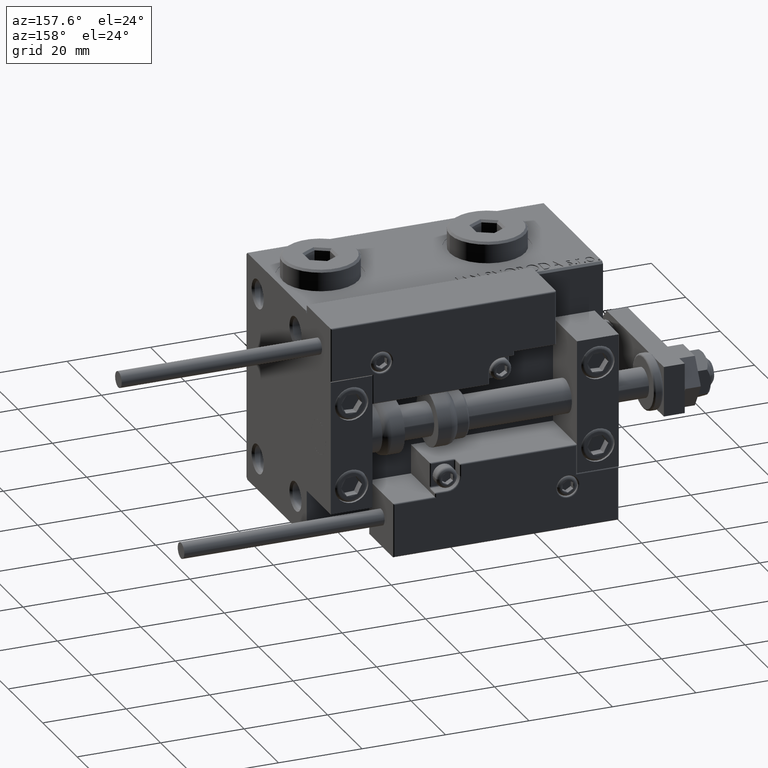
[diagram: clean part render]
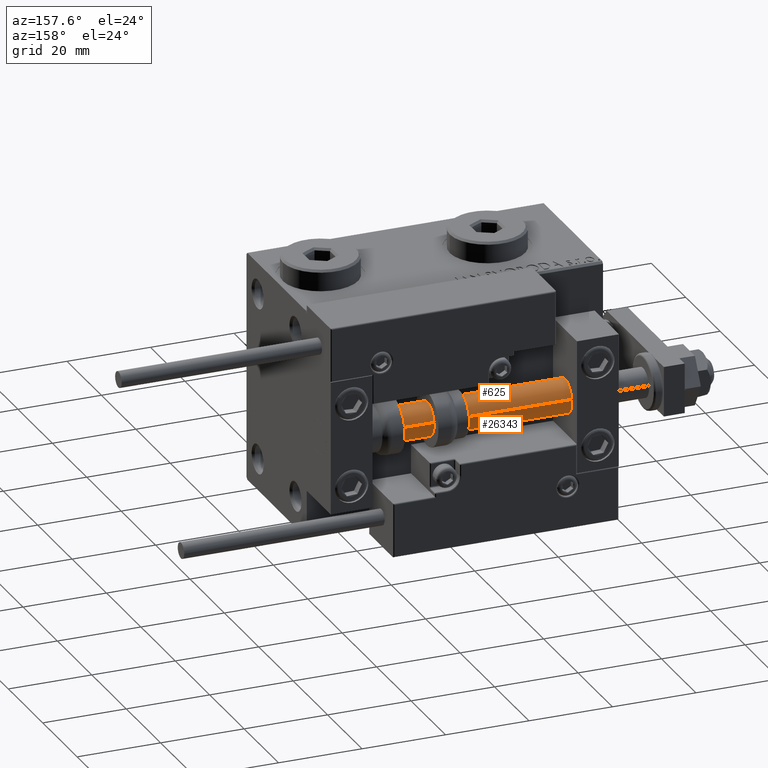
[diagram: same view with one multi-face feature highlighted, each face labeled with its STEP entity id]
A machine part, auxiliary view. The highlighted faces form ONE feature: a constant-radius fillet chain: 2 tangent blend faces with common blend radius 4 mm. The faces share edges in the B-rep.
Their STEP definitions:
[1] entity #26343 (Cylinder):
#2200 = VECTOR ( 'NONE', #35001, 1000.000000000000000 ) ;
#2903 = CARTESIAN_POINT ( 'NONE',  ( 0.000000000000000000, 0.000000000000000000, 71.00000000000000000 ) ) ;
#3008 = EDGE_CURVE ( 'NONE', #33191, #20203, #46124, .T. ) ;
#3223 = ORIENTED_EDGE ( 'NONE', *, *, #31170, .T. ) ;
#3628 = LINE ( 'NONE', #31794, #2200 ) ;
#6406 = CARTESIAN_POINT ( 'NONE',  ( 4.000000000000000000, 4.898587196589412829E-16, 2.000000000000029310 ) ) ;
#6570 = CARTESIAN_POINT ( 'NONE',  ( 4.000000000000000000, 4.898587196589412829E-16, 71.00000000000000000 ) ) ;
#7284 = EDGE_CURVE ( 'NONE', #33191, #16023, #3628, .T. ) ;
#8122 = AXIS2_PLACEMENT_3D ( 'NONE', #27377, #43574, #24950 ) ;
#11415 = CARTESIAN_POINT ( 'NONE',  ( 4.000000000000000000, 4.898587196589412829E-16, 71.00000000000000000 ) ) ;
#11426 = ORIENTED_EDGE ( 'NONE', *, *, #36551, .F. ) ;
#15590 = DIRECTION ( 'NONE',  ( -0.000000000000000000, -0.000000000000000000, -1.000000000000000000 ) ) ;
#16023 = VERTEX_POINT ( 'NONE', #46308 ) ;
#19152 = ORIENTED_EDGE ( 'NONE', *, *, #3008, .F. ) ;
#20203 = VERTEX_POINT ( 'NONE', #11415 ) ;
#22843 = CARTESIAN_POINT ( 'NONE',  ( 0.000000000000000000, 0.000000000000000000, 71.00000000000000000 ) ) ;
#24950 = DIRECTION ( 'NONE',  ( 1.000000000000000000, 0.000000000000000000, 0.000000000000000000 ) ) ;
#26343 = ADVANCED_FACE ( 'NONE', ( #31618 ), #35594, .T. ) ;
#27377 = CARTESIAN_POINT ( 'NONE',  ( 0.000000000000000000, 0.000000000000000000, 2.000000000000029310 ) ) ;
#27494 = AXIS2_PLACEMENT_3D ( 'NONE', #2903, #43282, #47767 ) ;
#31170 = EDGE_CURVE ( 'NONE', #16023, #32948, #47122, .T. ) ;
#31618 = FACE_OUTER_BOUND ( 'NONE', #34959, .T. ) ;
#31794 = CARTESIAN_POINT ( 'NONE',  ( -4.000000000000000000, 0.000000000000000000, 71.00000000000000000 ) ) ;
#32948 = VERTEX_POINT ( 'NONE', #6406 ) ;
#33191 = VERTEX_POINT ( 'NONE', #50166 ) ;
#34959 = EDGE_LOOP ( 'NONE', ( #11426, #19152, #35296, #3223 ) ) ;
#35001 = DIRECTION ( 'NONE',  ( -0.000000000000000000, -0.000000000000000000, -1.000000000000000000 ) ) ;
#35081 = DIRECTION ( 'NONE',  ( -1.000000000000000000, 0.000000000000000000, 0.000000000000000000 ) ) ;
#35296 = ORIENTED_EDGE ( 'NONE', *, *, #7284, .T. ) ;
#35522 = LINE ( 'NONE', #6570, #51609 ) ;
#35594 = CYLINDRICAL_SURFACE ( 'NONE', #45930, 4.000000000000000000 ) ;
#36551 = EDGE_CURVE ( 'NONE', #20203, #32948, #35522, .T. ) ;
#43282 = DIRECTION ( 'NONE',  ( 0.000000000000000000, 0.000000000000000000, 1.000000000000000000 ) ) ;
#43574 = DIRECTION ( 'NONE',  ( -0.000000000000000000, -0.000000000000000000, 1.000000000000000000 ) ) ;
#45930 = AXIS2_PLACEMENT_3D ( 'NONE', #22843, #47787, #35081 ) ;
#46124 = CIRCLE ( 'NONE', #27494, 4.000000000000000000 ) ;
#46308 = CARTESIAN_POINT ( 'NONE',  ( -4.000000000000000000, 0.000000000000000000, 2.000000000000029310 ) ) ;
#47122 = CIRCLE ( 'NONE', #8122, 4.000000000000000000 ) ;
#47767 = DIRECTION ( 'NONE',  ( 1.000000000000000000, 0.000000000000000000, 0.000000000000000000 ) ) ;
#47787 = DIRECTION ( 'NONE',  ( -0.000000000000000000, -0.000000000000000000, -1.000000000000000000 ) ) ;
#50166 = CARTESIAN_POINT ( 'NONE',  ( -4.000000000000000000, 0.000000000000000000, 71.00000000000000000 ) ) ;
#51609 = VECTOR ( 'NONE', #15590, 1000.000000000000000 ) ;
[2] entity #625 (Cylinder):
#625 = ADVANCED_FACE ( 'NONE', ( #10421 ), #18913, .T. ) ;
#2200 = VECTOR ( 'NONE', #35001, 1000.000000000000000 ) ;
#3284 = DIRECTION ( 'NONE',  ( 0.000000000000000000, 0.000000000000000000, 1.000000000000000000 ) ) ;
#3628 = LINE ( 'NONE', #31794, #2200 ) ;
#6406 = CARTESIAN_POINT ( 'NONE',  ( 4.000000000000000000, 4.898587196589412829E-16, 2.000000000000029310 ) ) ;
#6570 = CARTESIAN_POINT ( 'NONE',  ( 4.000000000000000000, 4.898587196589412829E-16, 71.00000000000000000 ) ) ;
#6964 = DIRECTION ( 'NONE',  ( -1.000000000000000000, 0.000000000000000000, 0.000000000000000000 ) ) ;
#7284 = EDGE_CURVE ( 'NONE', #33191, #16023, #3628, .T. ) ;
#10421 = FACE_OUTER_BOUND ( 'NONE', #46652, .T. ) ;
#11415 = CARTESIAN_POINT ( 'NONE',  ( 4.000000000000000000, 4.898587196589412829E-16, 71.00000000000000000 ) ) ;
#15590 = DIRECTION ( 'NONE',  ( -0.000000000000000000, -0.000000000000000000, -1.000000000000000000 ) ) ;
#15897 = CARTESIAN_POINT ( 'NONE',  ( 0.000000000000000000, 0.000000000000000000, 71.00000000000000000 ) ) ;
#16023 = VERTEX_POINT ( 'NONE', #46308 ) ;
#16166 = DIRECTION ( 'NONE',  ( -0.000000000000000000, -0.000000000000000000, -1.000000000000000000 ) ) ;
#18913 = CYLINDRICAL_SURFACE ( 'NONE', #42336, 4.000000000000000000 ) ;
#19991 = DIRECTION ( 'NONE',  ( 1.000000000000000000, 0.000000000000000000, 0.000000000000000000 ) ) ;
#20203 = VERTEX_POINT ( 'NONE', #11415 ) ;
#20896 = DIRECTION ( 'NONE',  ( -0.000000000000000000, -0.000000000000000000, 1.000000000000000000 ) ) ;
#21676 = CARTESIAN_POINT ( 'NONE',  ( 0.000000000000000000, 0.000000000000000000, 2.000000000000029310 ) ) ;
#26790 = ORIENTED_EDGE ( 'NONE', *, *, #36551, .T. ) ;
#30009 = EDGE_CURVE ( 'NONE', #32948, #16023, #43846, .T. ) ;
#31794 = CARTESIAN_POINT ( 'NONE',  ( -4.000000000000000000, 0.000000000000000000, 71.00000000000000000 ) ) ;
#32863 = DIRECTION ( 'NONE',  ( 1.000000000000000000, 0.000000000000000000, 0.000000000000000000 ) ) ;
#32948 = VERTEX_POINT ( 'NONE', #6406 ) ;
#33191 = VERTEX_POINT ( 'NONE', #50166 ) ;
#35001 = DIRECTION ( 'NONE',  ( -0.000000000000000000, -0.000000000000000000, -1.000000000000000000 ) ) ;
#35245 = AXIS2_PLACEMENT_3D ( 'NONE', #21676, #20896, #32863 ) ;
#35522 = LINE ( 'NONE', #6570, #51609 ) ;
#36551 = EDGE_CURVE ( 'NONE', #20203, #32948, #35522, .T. ) ;
#38232 = ORIENTED_EDGE ( 'NONE', *, *, #7284, .F. ) ;
#39045 = CIRCLE ( 'NONE', #43281, 4.000000000000000000 ) ;
#39666 = CARTESIAN_POINT ( 'NONE',  ( 0.000000000000000000, 0.000000000000000000, 71.00000000000000000 ) ) ;
#40976 = EDGE_CURVE ( 'NONE', #20203, #33191, #39045, .T. ) ;
#41477 = ORIENTED_EDGE ( 'NONE', *, *, #40976, .F. ) ;
#42336 = AXIS2_PLACEMENT_3D ( 'NONE', #15897, #16166, #6964 ) ;
#43281 = AXIS2_PLACEMENT_3D ( 'NONE', #39666, #3284, #19991 ) ;
#43846 = CIRCLE ( 'NONE', #35245, 4.000000000000000000 ) ;
#46308 = CARTESIAN_POINT ( 'NONE',  ( -4.000000000000000000, 0.000000000000000000, 2.000000000000029310 ) ) ;
#46652 = EDGE_LOOP ( 'NONE', ( #41477, #26790, #47036, #38232 ) ) ;
#47036 = ORIENTED_EDGE ( 'NONE', *, *, #30009, .T. ) ;
#50166 = CARTESIAN_POINT ( 'NONE',  ( -4.000000000000000000, 0.000000000000000000, 71.00000000000000000 ) ) ;
#51609 = VECTOR ( 'NONE', #15590, 1000.000000000000000 ) ;